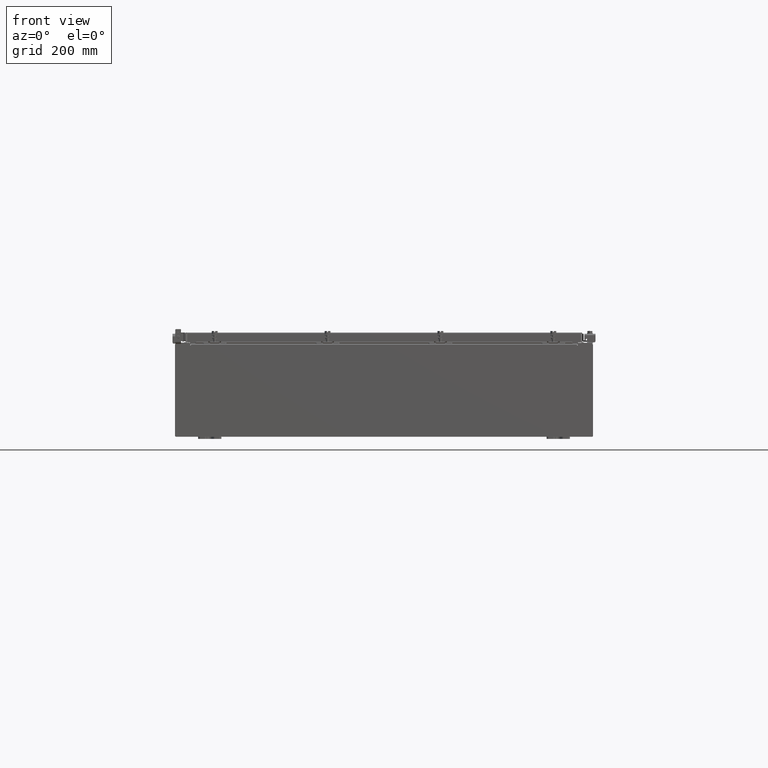
[diagram: clean part render]
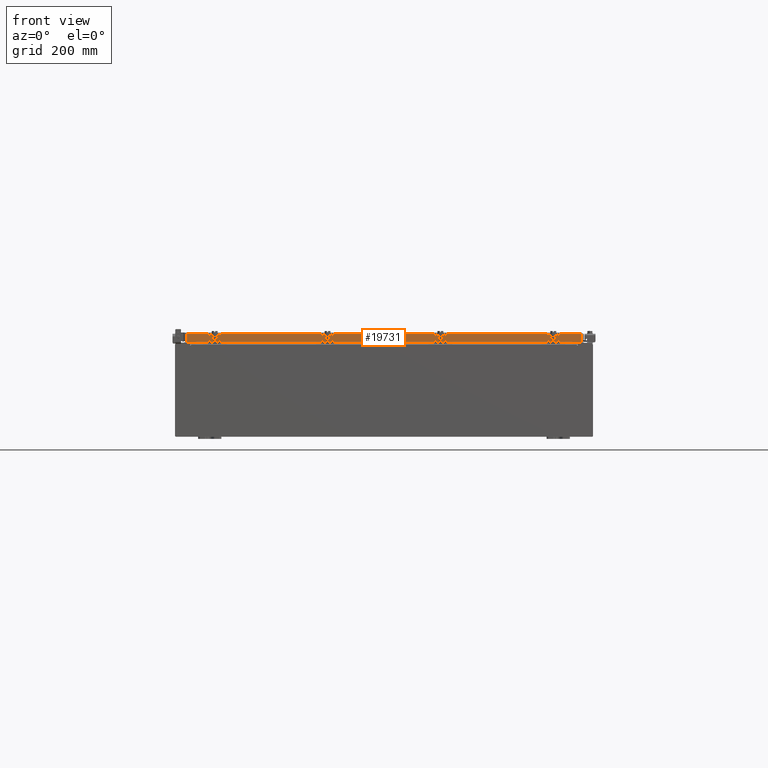
[diagram: same view with one face highlighted and labeled with its STEP entity id]
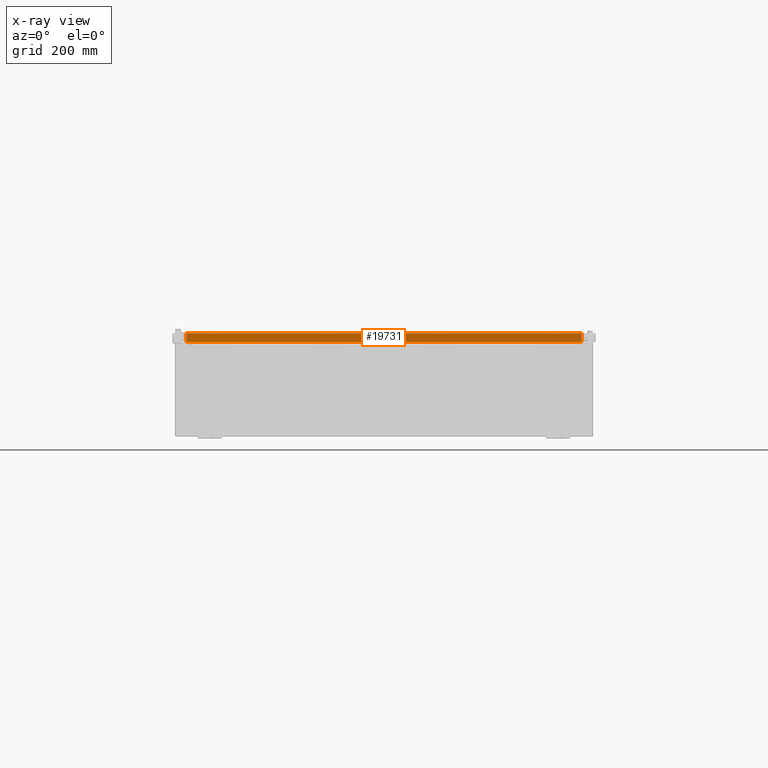
[diagram: x-ray of the same camera — body ghosted, the highlighted face saturated]
A machine part, front view. The second image highlights one B-rep face of the part: STEP entity #19731.
The next image is the same camera in x-ray: the body ghosted, the highlighted face saturated — about 0% of this face is hidden behind the body in this view.
In plain terms, the highlighted planar face has unit normal (0, 1, 0).
Its self-contained STEP definition (entity closure, byte-faithful):
#610 = EDGE_CURVE ( 'NONE', #26812, #26015, #26743, .T. ) ;
#960 = CARTESIAN_POINT ( 'NONE',  ( 16.23915786437626700, -23.09400000000000100, -0.8499999999999990900 ) ) ;
#1679 = CARTESIAN_POINT ( 'NONE',  ( -16.23915786437626400, -23.09400000000000100, -0.8499999999999990900 ) ) ;
#1990 = VECTOR ( 'NONE', #11157, 39.37007874015748100 ) ;
#2076 = ORIENTED_EDGE ( 'NONE', *, *, #11156, .T. ) ;
#2622 = VECTOR ( 'NONE', #26280, 39.37007874015748100 ) ;
#3460 = CARTESIAN_POINT ( 'NONE',  ( 16.98915786437627100, -23.09399999999999400, -0.8499999999999996400 ) ) ;
#4026 = EDGE_CURVE ( 'NONE', #5366, #26812, #27269, .T. ) ;
#4497 = EDGE_CURVE ( 'NONE', #5722, #21198, #18102, .T. ) ;
#4617 = DIRECTION ( 'NONE',  ( -1.000000000000000000, 0.0000000000000000000, 0.0000000000000000000 ) ) ;
#5048 = ORIENTED_EDGE ( 'NONE', *, *, #4026, .F. ) ;
#5262 = VECTOR ( 'NONE', #4617, 39.37007874015748100 ) ;
#5291 = DIRECTION ( 'NONE',  ( -1.000000000000000000, 1.279703943630056600E-016, 0.0000000000000000000 ) ) ;
#5294 = CARTESIAN_POINT ( 'NONE',  ( 17.07800000000000300, -23.09400000000000100, -0.8499999999999996400 ) ) ;
#5366 = VERTEX_POINT ( 'NONE', #25888 ) ;
#5542 = EDGE_LOOP ( 'NONE', ( #26190, #2076, #26687, #19085, #9917, #5048 ) ) ;
#5722 = VERTEX_POINT ( 'NONE', #1679 ) ;
#5847 = FACE_OUTER_BOUND ( 'NONE', #5542, .T. ) ;
#5943 = VECTOR ( 'NONE', #14383, 39.37007874015748100 ) ;
#9917 = ORIENTED_EDGE ( 'NONE', *, *, #610, .F. ) ;
#10810 = LINE ( 'NONE', #19321, #5262 ) ;
#11156 = EDGE_CURVE ( 'NONE', #25010, #21198, #22079, .T. ) ;
#11157 = DIRECTION ( 'NONE',  ( -0.0000000000000000000, 3.607333059089402100E-031, -1.000000000000000000 ) ) ;
#11864 = EDGE_CURVE ( 'NONE', #26015, #5722, #10810, .T. ) ;
#13271 = VECTOR ( 'NONE', #26961, 39.37007874015748100 ) ;
#13651 = PLANE ( 'NONE',  #25589 ) ;
#14383 = DIRECTION ( 'NONE',  ( 0.0000000000000000000, 3.607333059089402100E-031, -1.000000000000000000 ) ) ;
#15434 = CARTESIAN_POINT ( 'NONE',  ( 17.07800000000000300, -23.09400000000000100, -0.8499999999999996400 ) ) ;
#15775 = CARTESIAN_POINT ( 'NONE',  ( -2.955348287419252300E-015, -23.09399999999999400, 2.608136560115737200E-016 ) ) ;
#17929 = DIRECTION ( 'NONE',  ( 1.279703943630056600E-016, 1.000000000000000000, 3.607333059089401300E-031 ) ) ;
#18102 = LINE ( 'NONE', #5294, #2622 ) ;
#18670 = CARTESIAN_POINT ( 'NONE',  ( -16.98915786437626700, -23.09399999999999400, 2.608136560115737200E-016 ) ) ;
#18957 = CARTESIAN_POINT ( 'NONE',  ( -16.98915786437626700, -23.09399999999999400, -0.08769999999999589200 ) ) ;
#19085 = ORIENTED_EDGE ( 'NONE', *, *, #11864, .F. ) ;
#19321 = CARTESIAN_POINT ( 'NONE',  ( 16.23915786437626700, -23.09400000000000100, -0.8499999999999990900 ) ) ;
#19731 = ADVANCED_FACE ( 'NONE', ( #5847 ), #13651, .F. ) ;
#20108 = CARTESIAN_POINT ( 'NONE',  ( -16.98915786437626700, -23.09399999999999400, -0.8499999999999954300 ) ) ;
#20617 = DIRECTION ( 'NONE',  ( -1.000000000000000000, 1.279703943630056600E-016, 1.239713195391617400E-016 ) ) ;
#21198 = VERTEX_POINT ( 'NONE', #20108 ) ;
#22079 = LINE ( 'NONE', #18670, #5943 ) ;
#24491 = LINE ( 'NONE', #24731, #13271 ) ;
#24731 = CARTESIAN_POINT ( 'NONE',  ( 17.07800000000000300, -23.09399999999999400, -0.08769999999999589200 ) ) ;
#24907 = EDGE_CURVE ( 'NONE', #25010, #5366, #24491, .T. ) ;
#25010 = VERTEX_POINT ( 'NONE', #18957 ) ;
#25589 = AXIS2_PLACEMENT_3D ( 'NONE', #15775, #17929, #5291 ) ;
#25888 = CARTESIAN_POINT ( 'NONE',  ( 16.98915786437627100, -23.09399999999999400, -0.08769999999999589200 ) ) ;
#25922 = CARTESIAN_POINT ( 'NONE',  ( 16.98915786437627100, -23.09399999999999400, -0.07470000000000000300 ) ) ;
#26015 = VERTEX_POINT ( 'NONE', #960 ) ;
#26073 = VECTOR ( 'NONE', #20617, 39.37007874015748100 ) ;
#26190 = ORIENTED_EDGE ( 'NONE', *, *, #24907, .F. ) ;
#26280 = DIRECTION ( 'NONE',  ( -1.000000000000000000, 1.279703943630056600E-016, 1.239713195391617400E-016 ) ) ;
#26687 = ORIENTED_EDGE ( 'NONE', *, *, #4497, .F. ) ;
#26743 = LINE ( 'NONE', #15434, #26073 ) ;
#26812 = VERTEX_POINT ( 'NONE', #3460 ) ;
#26961 = DIRECTION ( 'NONE',  ( 1.000000000000000000, -1.279703943630056600E-016, 1.368455531567204500E-048 ) ) ;
#27269 = LINE ( 'NONE', #25922, #1990 ) ;